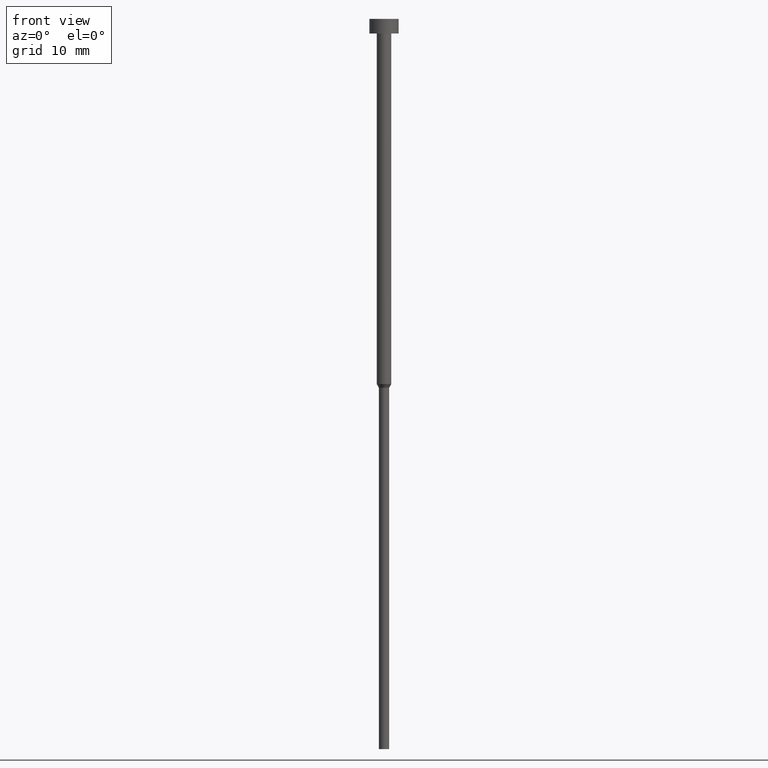
[diagram: clean part render]
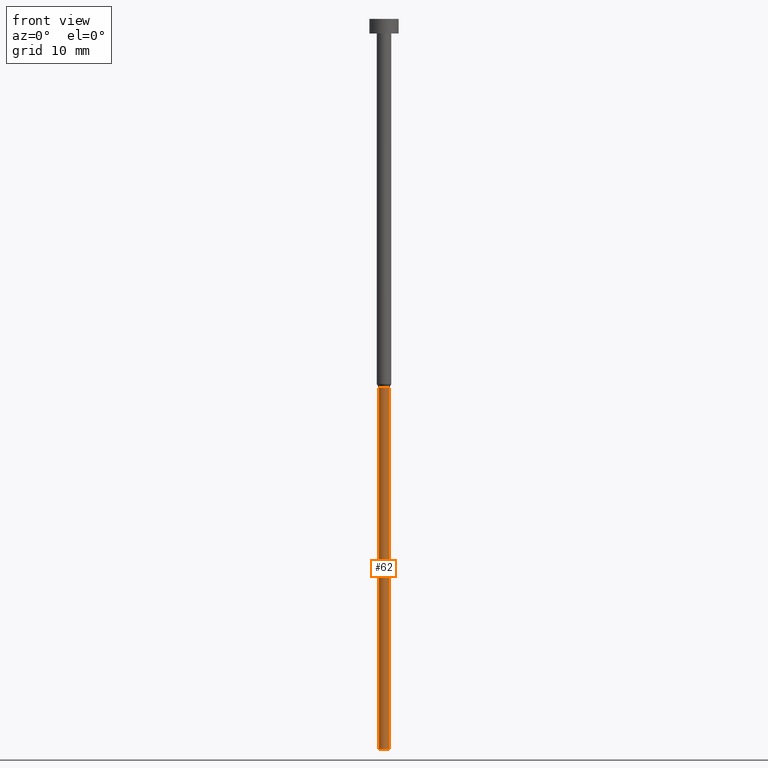
[diagram: same view with one face highlighted and labeled with its STEP entity id]
A machine part, front view. The second image highlights one B-rep face of the part: STEP entity #62.
In plain terms, the highlighted cylindrical surface (edge-blend (fillet) strip) has radius 0.7 mm, axis along (-0, -0, 1).
Its self-contained STEP definition (entity closure, byte-faithful):
#1 = LINE ( 'NONE', #105, #323 ) ;
#20 = CARTESIAN_POINT ( 'NONE',  ( -0.6999999999999998446, 8.572527594031470725E-17, -100.0000000000000000 ) ) ;
#58 = VECTOR ( 'NONE', #318, 1000.000000000000000 ) ;
#60 = AXIS2_PLACEMENT_3D ( 'NONE', #288, #230, #263 ) ;
#62 = ADVANCED_FACE ( 'NONE', ( #259 ), #156, .T. ) ;
#76 = DIRECTION ( 'NONE',  ( 1.000000000000000000, 0.000000000000000000, 0.000000000000000000 ) ) ;
#90 = ORIENTED_EDGE ( 'NONE', *, *, #177, .T. ) ;
#91 = EDGE_CURVE ( 'NONE', #115, #190, #343, .T. ) ;
#105 = CARTESIAN_POINT ( 'NONE',  ( -0.6999999999999998446, 8.572527594031470725E-17, 0.000000000000000000 ) ) ;
#115 = VERTEX_POINT ( 'NONE', #348 ) ;
#121 = EDGE_CURVE ( 'NONE', #137, #134, #142, .T. ) ;
#134 = VERTEX_POINT ( 'NONE', #183 ) ;
#137 = VERTEX_POINT ( 'NONE', #20 ) ;
#139 = DIRECTION ( 'NONE',  ( -0.000000000000000000, -0.000000000000000000, 1.000000000000000000 ) ) ;
#142 = CIRCLE ( 'NONE', #250, 0.6999999999999998446 ) ;
#149 = DIRECTION ( 'NONE',  ( -0.000000000000000000, -0.000000000000000000, 1.000000000000000000 ) ) ;
#156 = CYLINDRICAL_SURFACE ( 'NONE', #60, 0.6999999999999998446 ) ;
#177 = EDGE_CURVE ( 'NONE', #134, #190, #321, .T. ) ;
#183 = CARTESIAN_POINT ( 'NONE',  ( 0.6999999999999998446, 0.000000000000000000, -100.0000000000000000 ) ) ;
#185 = CARTESIAN_POINT ( 'NONE',  ( 0.000000000000000000, 0.000000000000000000, -100.0000000000000000 ) ) ;
#190 = VERTEX_POINT ( 'NONE', #332 ) ;
#217 = ORIENTED_EDGE ( 'NONE', *, *, #91, .F. ) ;
#230 = DIRECTION ( 'NONE',  ( -0.000000000000000000, -0.000000000000000000, 1.000000000000000000 ) ) ;
#232 = CARTESIAN_POINT ( 'NONE',  ( 0.6999999999999998446, 0.000000000000000000, 0.000000000000000000 ) ) ;
#235 = AXIS2_PLACEMENT_3D ( 'NONE', #319, #149, #76 ) ;
#242 = EDGE_LOOP ( 'NONE', ( #301, #336, #90, #217 ) ) ;
#250 = AXIS2_PLACEMENT_3D ( 'NONE', #185, #289, #260 ) ;
#259 = FACE_OUTER_BOUND ( 'NONE', #242, .T. ) ;
#260 = DIRECTION ( 'NONE',  ( 1.000000000000000000, 0.000000000000000000, 0.000000000000000000 ) ) ;
#263 = DIRECTION ( 'NONE',  ( 1.000000000000000000, 0.000000000000000000, 0.000000000000000000 ) ) ;
#288 = CARTESIAN_POINT ( 'NONE',  ( 0.000000000000000000, 0.000000000000000000, 0.000000000000000000 ) ) ;
#289 = DIRECTION ( 'NONE',  ( -0.000000000000000000, -0.000000000000000000, 1.000000000000000000 ) ) ;
#301 = ORIENTED_EDGE ( 'NONE', *, *, #327, .F. ) ;
#318 = DIRECTION ( 'NONE',  ( -0.000000000000000000, -0.000000000000000000, 1.000000000000000000 ) ) ;
#319 = CARTESIAN_POINT ( 'NONE',  ( 0.000000000000000000, 0.000000000000000000, -50.51961524227067457 ) ) ;
#321 = LINE ( 'NONE', #232, #58 ) ;
#323 = VECTOR ( 'NONE', #139, 1000.000000000000000 ) ;
#327 = EDGE_CURVE ( 'NONE', #137, #115, #1, .T. ) ;
#332 = CARTESIAN_POINT ( 'NONE',  ( 0.6999999999999999556, 0.000000000000000000, -50.51961524227067457 ) ) ;
#336 = ORIENTED_EDGE ( 'NONE', *, *, #121, .T. ) ;
#343 = CIRCLE ( 'NONE', #235, 0.6999999999999999556 ) ;
#348 = CARTESIAN_POINT ( 'NONE',  ( -0.6999999999999999556, 8.572527594031473190E-17, -50.51961524227067457 ) ) ;